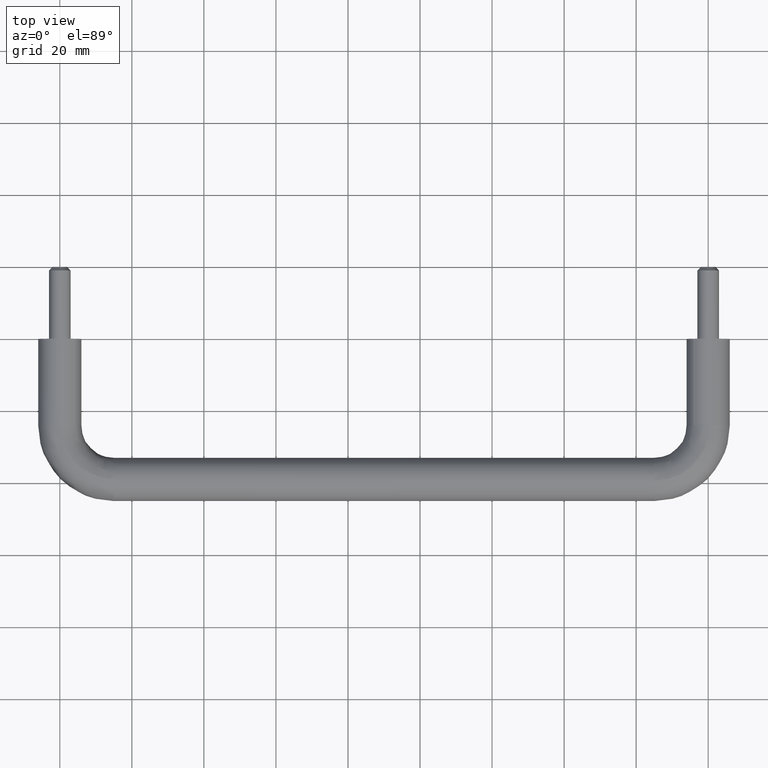
[diagram: clean part render]
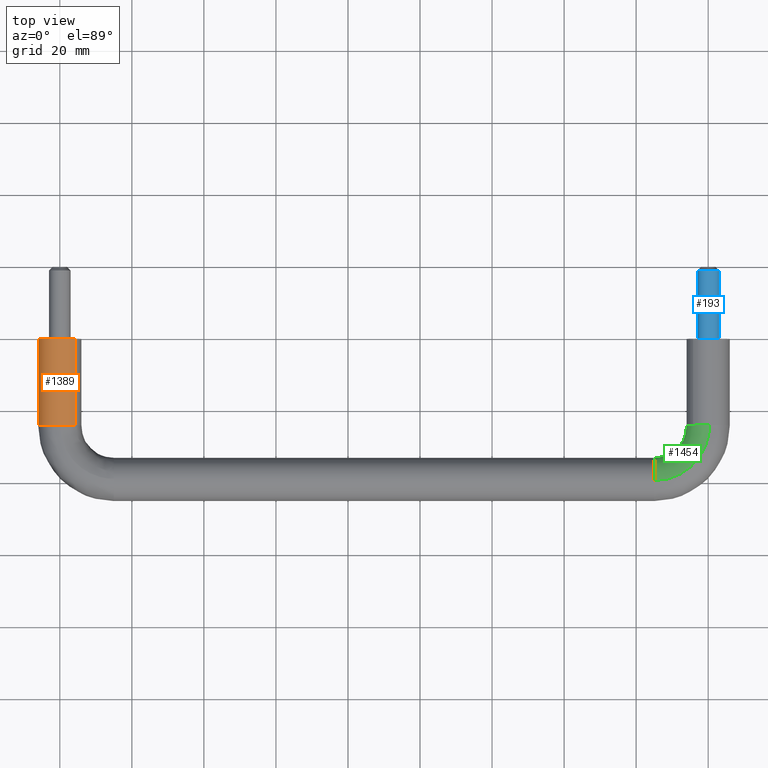
[diagram: same view with three faces highlighted in distinct colors, each labeled with its STEP entity id]
A machine part, top view with three faces highlighted in distinct colors.
Their STEP definitions:

[orange] entity #1389 — the highlighted face is a freeform B-spline surface patch.
#1192=CARTESIAN_POINT('',(2.905318393535143,-24.0,-5.249678564653877));
#1193=VERTEX_POINT('',#1192);
#1209=CARTESIAN_POINT('',(2.905309782396585,0.0,-5.249683330279442));
#1210=VERTEX_POINT('',#1209);
#1211=CARTESIAN_POINT('',(2.905309782396585,0.0,-5.249683330279442));
#1212=CARTESIAN_POINT('',(2.905318393535143,-24.0,-5.249678564653877));
#1213=QUASI_UNIFORM_CURVE('',1,(#1211,#1212),.UNSPECIFIED.,.F.,.U.);
#1214=EDGE_CURVE('',#1210,#1193,#1213,.T.);
#1231=CARTESIAN_POINT('',(4.423666584787512,1.110223E-016,4.053538447655331));
#1232=VERTEX_POINT('',#1231);
#1246=CARTESIAN_POINT('',(4.423666547451096,-24.000000000116419,4.053538488362753));
#1247=VERTEX_POINT('',#1246);
#1248=CARTESIAN_POINT('',(4.423666584787512,1.110223E-016,4.053538447655331));
#1249=CARTESIAN_POINT('',(4.423666547451096,-24.000000000116419,4.053538488362753));
#1250=QUASI_UNIFORM_CURVE('',1,(#1248,#1249),.UNSPECIFIED.,.F.,.U.);
#1251=EDGE_CURVE('',#1232,#1247,#1250,.T.);
#1269=CARTESIAN_POINT('',(4.423664020860743,0.600000000015522,4.053541245693961));
#1270=CARTESIAN_POINT('',(0.370122775166782,0.600000000015521,8.477205266554705));
#1271=CARTESIAN_POINT('',(-4.053541245693961,0.600000000015521,4.423664020860743));
#1272=CARTESIAN_POINT('',(-8.477205266554705,0.600000000015520,0.370122775166782));
#1273=CARTESIAN_POINT('',(-4.423664020860743,0.600000000015520,-4.053541245693961));
#1274=CARTESIAN_POINT('',(-1.230325250919644,0.600000000015521,-7.538458992124772));
#1275=CARTESIAN_POINT('',(2.905318393526275,0.600000000015521,-5.249678564658782));
#1276=CARTESIAN_POINT('',(4.423664020860747,-24.615000000636691,4.053541245693961));
#1277=CARTESIAN_POINT('',(0.370122775166785,-24.615000000636698,8.477205266554705));
#1278=CARTESIAN_POINT('',(-4.053541245693958,-24.615000000636691,4.423664020860743));
#1279=CARTESIAN_POINT('',(-8.477205266554702,-24.615000000636698,0.370122775166782));
#1280=CARTESIAN_POINT('',(-4.423664020860739,-24.615000000636691,-4.053541245693961));
#1281=CARTESIAN_POINT('',(-1.230325250919641,-24.615000000636694,-7.538458992124772));
#1282=CARTESIAN_POINT('',(2.905318393526280,-24.615000000636691,-5.249678564658782));
#1290=(BOUNDED_SURFACE()B_SPLINE_SURFACE(2,1,((#1269,#1276),(#1270,#1277),(#1271,#1278),(#1272,#1279),(#1273,#1280),(#1274,#1281),(#1275,#1282)),.UNSPECIFIED.,.F.,.F.,.U.)B_SPLINE_SURFACE_WITH_KNOTS((3,2,2,3),(2,2),(0.0,9.941125496954280,19.882250993908560,28.232796411350151),(0.0,25.215000000652221),.UNSPECIFIED.)GEOMETRIC_REPRESENTATION_ITEM()RATIONAL_B_SPLINE_SURFACE(((1.0,1.0),(0.707106781186548,0.707106781186548),(1.0,1.0),(0.707106781186548,0.707106781186548),(1.0,1.0),(0.753969696196700,0.753969696196700),(0.921270302782944,0.921270302782944)))REPRESENTATION_ITEM('')SURFACE());
#1291=CARTESIAN_POINT('',(-0.418399512824394,-24.000000000620791,-5.985394042806897));
#1292=VERTEX_POINT('',#1291);
#1293=CARTESIAN_POINT('',(-0.418399512824394,-24.000000000620787,-5.985394042806897));
#1294=CARTESIAN_POINT('',(-0.209454698632360,-24.000000000000004,-6.0));
#1295=CARTESIAN_POINT('',(2.939055E-015,-24.0,-6.0));
#1296=CARTESIAN_POINT('',(1.549547416940609,-24.0,-6.000000000000001));
#1297=CARTESIAN_POINT('',(2.905318393535143,-24.000000000000004,-5.249678564653877));
#1305=(BOUNDED_CURVE()B_SPLINE_CURVE(2,(#1293,#1294,#1295,#1296,#1297),.UNSPECIFIED.,.F.,.U.)B_SPLINE_CURVE_WITH_KNOTS((3,2,3),(0.237833686341369,0.250000000000000,0.332484288971160),.UNSPECIFIED.)CURVE()GEOMETRIC_REPRESENTATION_ITEM()RATIONAL_B_SPLINE_CURVE((0.972879875977236,0.985746276925718,1.0,0.903363644406792,0.870495137452543))REPRESENTATION_ITEM(''));
#1306=EDGE_CURVE('',#1292,#1193,#1305,.T.);
#1307=ORIENTED_EDGE('',*,*,#1306,.F.);
#1308=CARTESIAN_POINT('',(-5.999999999999997,-24.0,0.0));
#1309=VERTEX_POINT('',#1308);
#1310=CARTESIAN_POINT('',(-5.999999999999997,-24.0,0.0));
#1311=CARTESIAN_POINT('',(-5.999999999999999,-24.000000000000011,-5.595221077280439));
#1312=CARTESIAN_POINT('',(-0.418399512824394,-24.000000000620783,-5.985394042806897));
#1320=(BOUNDED_CURVE()B_SPLINE_CURVE(2,(#1310,#1311,#1312),.UNSPECIFIED.,.F.,.U.)B_SPLINE_CURVE_WITH_KNOTS((3,3),(0.0,0.237833686341369),.UNSPECIFIED.)CURVE()GEOMETRIC_REPRESENTATION_ITEM()RATIONAL_B_SPLINE_CURVE((1.0,0.721360504260829,0.972879875977236))REPRESENTATION_ITEM(''));
#1321=EDGE_CURVE('',#1309,#1292,#1320,.T.);
#1322=ORIENTED_EDGE('',*,*,#1321,.F.);
#1323=CARTESIAN_POINT('',(0.075396239566499,-24.000000000438011,5.999526265219547));
#1324=VERTEX_POINT('',#1323);
#1325=CARTESIAN_POINT('',(0.075396239566499,-24.000000000438011,5.999526265219547));
#1326=CARTESIAN_POINT('',(0.037699608217752,-23.999999999999996,6.0));
#1327=CARTESIAN_POINT('',(2.939055E-015,-24.0,6.0));
#1328=CARTESIAN_POINT('',(-5.999999999999998,-23.999999999999996,6.0));
#1329=CARTESIAN_POINT('',(-5.999999999999997,-24.0,0.0));
#1337=(BOUNDED_CURVE()B_SPLINE_CURVE(2,(#1325,#1326,#1327,#1328,#1329),.UNSPECIFIED.,.F.,.U.)B_SPLINE_CURVE_WITH_KNOTS((3,2,3),(0.747784295906111,0.750000000000000,1.0),.UNSPECIFIED.)CURVE()GEOMETRIC_REPRESENTATION_ITEM()RATIONAL_B_SPLINE_CURVE((0.994854295608068,0.997404141184011,1.0,0.707106781186548,1.0))REPRESENTATION_ITEM(''));
#1338=EDGE_CURVE('',#1324,#1309,#1337,.T.);
#1339=ORIENTED_EDGE('',*,*,#1338,.F.);
#1340=CARTESIAN_POINT('',(4.423666547451097,-24.000000000116430,4.053538488362754));
#1341=CARTESIAN_POINT('',(2.670382202534906,-24.000000000246160,5.966914993032725));
#1342=CARTESIAN_POINT('',(0.075396239566499,-24.000000000438011,5.999526265219547));
#1350=(BOUNDED_CURVE()B_SPLINE_CURVE(2,(#1340,#1341,#1342),.UNSPECIFIED.,.F.,.U.)B_SPLINE_CURVE_WITH_KNOTS((3,3),(0.618415114987918,0.747784295906111),.UNSPECIFIED.)CURVE()GEOMETRIC_REPRESENTATION_ITEM()RATIONAL_B_SPLINE_CURVE((0.853959792452609,0.845975465380940,0.994854295608066))REPRESENTATION_ITEM(''));
#1351=EDGE_CURVE('',#1247,#1324,#1350,.T.);
#1352=ORIENTED_EDGE('',*,*,#1351,.F.);
#1353=ORIENTED_EDGE('',*,*,#1251,.F.);
#1354=CARTESIAN_POINT('',(-6.0,0.0,0.0));
#1355=VERTEX_POINT('',#1354);
#1356=CARTESIAN_POINT('',(4.423666584787512,1.110223E-016,4.053538447655331));
#1357=CARTESIAN_POINT('',(2.640065450281171,0.0,6.000000000000001));
#1358=CARTESIAN_POINT('',(0.0,0.0,6.0));
#1359=CARTESIAN_POINT('',(-6.0,0.0,6.0));
#1360=CARTESIAN_POINT('',(-6.0,0.0,0.0));
#1368=(BOUNDED_CURVE()B_SPLINE_CURVE(2,(#1356,#1357,#1358,#1359,#1360),.UNSPECIFIED.,.F.,.U.)B_SPLINE_CURVE_WITH_KNOTS((3,2,3),(0.618415113599380,0.750000000000000,1.0),.UNSPECIFIED.)CURVE()GEOMETRIC_REPRESENTATION_ITEM()RATIONAL_B_SPLINE_CURVE((0.853959792624003,0.845838716299679,1.0,0.707106781186548,1.0))REPRESENTATION_ITEM(''));
#1369=EDGE_CURVE('',#1232,#1355,#1368,.T.);
#1370=ORIENTED_EDGE('',*,*,#1369,.T.);
#1371=CARTESIAN_POINT('',(-6.0,0.0,0.0));
#1372=CARTESIAN_POINT('',(-6.0,0.0,-6.0));
#1373=CARTESIAN_POINT('',(0.0,0.0,-6.0));
#1374=CARTESIAN_POINT('',(1.549542167775759,0.0,-6.0));
#1375=CARTESIAN_POINT('',(2.905309782396584,0.0,-5.249683330279442));
#1383=(BOUNDED_CURVE()B_SPLINE_CURVE(2,(#1371,#1372,#1373,#1374,#1375),.UNSPECIFIED.,.F.,.U.)B_SPLINE_CURVE_WITH_KNOTS((3,2,3),(0.0,0.250000000000000,0.332484036553738),.UNSPECIFIED.)CURVE()GEOMETRIC_REPRESENTATION_ITEM()RATIONAL_B_SPLINE_CURVE((1.0,0.707106781186548,1.0,0.903363940132197,0.870495338620754))REPRESENTATION_ITEM(''));
#1384=EDGE_CURVE('',#1355,#1210,#1383,.T.);
#1385=ORIENTED_EDGE('',*,*,#1384,.T.);
#1386=ORIENTED_EDGE('',*,*,#1214,.T.);
#1387=EDGE_LOOP('',(#1307,#1322,#1339,#1352,#1353,#1370,#1385,#1386));
#1388=FACE_OUTER_BOUND('',#1387,.T.);
#1389=ADVANCED_FACE('',(#1388),#1290,.T.);

[blue] entity #193 — the highlighted face is a freeform B-spline surface patch.
#44=CARTESIAN_POINT('',(182.281217896800090,19.475000000000009,-1.948344144990550));
#45=CARTESIAN_POINT('',(184.229562041790590,19.475000000000009,0.332873751809542));
#46=CARTESIAN_POINT('',(181.948344144990610,19.475000000000009,2.281217896800092));
#47=CARTESIAN_POINT('',(179.667126248190410,19.475000000000009,4.229562041790642));
#48=CARTESIAN_POINT('',(177.718782103199910,19.475000000000009,1.948344144990550));
#49=CARTESIAN_POINT('',(175.770437958209380,19.475000000000009,-0.332873751809542));
#50=CARTESIAN_POINT('',(178.051655855009390,19.475000000000009,-2.281217896800092));
#51=CARTESIAN_POINT('',(182.281217896800090,-0.486874999999980,-1.948344144990550));
#52=CARTESIAN_POINT('',(184.229562041790590,-0.486874999999980,0.332873751809542));
#53=CARTESIAN_POINT('',(181.948344144990610,-0.486874999999980,2.281217896800092));
#54=CARTESIAN_POINT('',(179.667126248190410,-0.486874999999980,4.229562041790642));
#55=CARTESIAN_POINT('',(177.718782103199910,-0.486874999999980,1.948344144990550));
#56=CARTESIAN_POINT('',(175.770437958209380,-0.486874999999980,-0.332873751809542));
#57=CARTESIAN_POINT('',(178.051655855009390,-0.486874999999980,-2.281217896800092));
#65=(BOUNDED_SURFACE()B_SPLINE_SURFACE(2,1,((#44,#51),(#45,#52),(#46,#53),(#47,#54),(#48,#55),(#49,#56),(#50,#57)),.UNSPECIFIED.,.F.,.F.,.U.)B_SPLINE_SURFACE_WITH_KNOTS((3,2,2,3),(2,2),(0.0,4.970562748477141,9.941125496954282,14.911688245431421),(0.0,19.961874999999988),.UNSPECIFIED.)GEOMETRIC_REPRESENTATION_ITEM()RATIONAL_B_SPLINE_SURFACE(((1.0,1.0),(0.707106781186548,0.707106781186548),(1.0,1.0),(0.707106781186548,0.707106781186548),(1.0,1.0),(0.707106781186548,0.707106781186548),(1.0,1.0)))REPRESENTATION_ITEM('')SURFACE());
#66=CARTESIAN_POINT('',(183.0,2.081668E-014,0.0));
#67=VERTEX_POINT('',#66);
#68=CARTESIAN_POINT('',(182.281217896799600,2.156608E-014,-1.948344144991216));
#69=VERTEX_POINT('',#68);
#70=CARTESIAN_POINT('',(183.0,2.081668E-014,0.0));
#71=CARTESIAN_POINT('',(183.000000000000090,2.081668E-014,-1.106758431330476));
#72=CARTESIAN_POINT('',(182.281217896799520,2.156608E-014,-1.948344144991216));
#80=(BOUNDED_CURVE()B_SPLINE_CURVE(2,(#70,#71,#72),.UNSPECIFIED.,.F.,.U.)B_SPLINE_CURVE_WITH_KNOTS((3,3),(0.0,0.113143161349462),.UNSPECIFIED.)CURVE()GEOMETRIC_REPRESENTATION_ITEM()RATIONAL_B_SPLINE_CURVE((1.0,0.867444541142505,0.854871031639134))REPRESENTATION_ITEM(''));
#81=EDGE_CURVE('',#67,#69,#80,.T.);
#82=ORIENTED_EDGE('',*,*,#81,.T.);
#83=CARTESIAN_POINT('',(182.281217896799490,19.0,-1.948344144991222));
#84=VERTEX_POINT('',#83);
#85=CARTESIAN_POINT('',(182.281217896799490,19.0,-1.948344144991222));
#86=CARTESIAN_POINT('',(182.281217896799600,2.156608E-014,-1.948344144991216));
#87=QUASI_UNIFORM_CURVE('',1,(#85,#86),.UNSPECIFIED.,.F.,.U.);
#88=EDGE_CURVE('',#84,#69,#87,.T.);
#89=ORIENTED_EDGE('',*,*,#88,.F.);
#90=CARTESIAN_POINT('',(182.990752001276210,18.999999999810019,0.235377288628793));
#91=VERTEX_POINT('',#90);
#92=CARTESIAN_POINT('',(182.990752001276230,18.999999999810019,0.235377288628793));
#93=CARTESIAN_POINT('',(182.999999999999970,19.000000000000004,0.117870322459998));
#94=CARTESIAN_POINT('',(183.0,19.0,0.0));
#95=CARTESIAN_POINT('',(183.000000000000060,19.0,-1.106758431330486));
#96=CARTESIAN_POINT('',(182.281217896799520,19.000000000000004,-1.948344144991222));
#104=(BOUNDED_CURVE()B_SPLINE_CURVE(2,(#92,#93,#94,#95,#96),.UNSPECIFIED.,.F.,.U.)B_SPLINE_CURVE_WITH_KNOTS((3,2,3),(0.736331300468797,0.750000000000000,0.863143161349463),.UNSPECIFIED.)CURVE()GEOMETRIC_REPRESENTATION_ITEM()RATIONAL_B_SPLINE_CURVE((0.969723355829622,0.983986122389248,1.0,0.867444541142504,0.854871031639134))REPRESENTATION_ITEM(''));
#105=EDGE_CURVE('',#91,#84,#104,.T.);
#106=ORIENTED_EDGE('',*,*,#105,.F.);
#107=CARTESIAN_POINT('',(180.0,19.0,3.0));
#108=VERTEX_POINT('',#107);
#109=CARTESIAN_POINT('',(180.0,19.0,3.0));
#110=CARTESIAN_POINT('',(182.773171472313830,18.999999999999996,3.000000000000000));
#111=CARTESIAN_POINT('',(182.990752001276260,18.999999999810015,0.235377288628793));
#119=(BOUNDED_CURVE()B_SPLINE_CURVE(2,(#109,#110,#111),.UNSPECIFIED.,.F.,.U.)B_SPLINE_CURVE_WITH_KNOTS((3,3),(0.500000000000000,0.736331300468797),.UNSPECIFIED.)CURVE()GEOMETRIC_REPRESENTATION_ITEM()RATIONAL_B_SPLINE_CURVE((1.0,0.723120658797299,0.969723355829623))REPRESENTATION_ITEM(''));
#120=EDGE_CURVE('',#108,#91,#119,.T.);
#121=ORIENTED_EDGE('',*,*,#120,.F.);
#122=CARTESIAN_POINT('',(177.009247998723790,18.999999999810019,-0.235377288628793));
#123=VERTEX_POINT('',#122);
#124=CARTESIAN_POINT('',(177.009247998723740,18.999999999810019,-0.235377288628793));
#125=CARTESIAN_POINT('',(177.000000000000090,19.000000000000004,-0.117870322459998));
#126=CARTESIAN_POINT('',(177.0,19.0,0.0));
#127=CARTESIAN_POINT('',(176.999999999999970,18.999999999999993,3.0));
#128=CARTESIAN_POINT('',(180.0,19.0,3.0));
#136=(BOUNDED_CURVE()B_SPLINE_CURVE(2,(#124,#125,#126,#127,#128),.UNSPECIFIED.,.F.,.U.)B_SPLINE_CURVE_WITH_KNOTS((3,2,3),(0.236331300468797,0.250000000000000,0.500000000000000),.UNSPECIFIED.)CURVE()GEOMETRIC_REPRESENTATION_ITEM()RATIONAL_B_SPLINE_CURVE((0.969723355829622,0.983986122389248,1.0,0.707106781186548,1.0))REPRESENTATION_ITEM(''));
#137=EDGE_CURVE('',#123,#108,#136,.T.);
#138=ORIENTED_EDGE('',*,*,#137,.F.);
#139=CARTESIAN_POINT('',(178.051657767685100,19.0,-2.281219530376657));
#140=VERTEX_POINT('',#139);
#141=CARTESIAN_POINT('',(178.051657767685130,19.0,-2.281219530376657));
#142=CARTESIAN_POINT('',(177.106744580310280,19.0,-1.474188797772609));
#143=CARTESIAN_POINT('',(177.009247998723710,18.999999999810015,-0.235377288628793));
#151=(BOUNDED_CURVE()B_SPLINE_CURVE(2,(#141,#142,#143),.UNSPECIFIED.,.F.,.U.)B_SPLINE_CURVE_WITH_KNOTS((3,3),(0.113143034642589,0.236331300468796),.UNSPECIFIED.)CURVE()GEOMETRIC_REPRESENTATION_ITEM()RATIONAL_B_SPLINE_CURVE((0.854871059800953,0.841181099534255,0.969723355829622))REPRESENTATION_ITEM(''));
#152=EDGE_CURVE('',#140,#123,#151,.T.);
#153=ORIENTED_EDGE('',*,*,#152,.F.);
#154=CARTESIAN_POINT('',(178.051655855007710,2.062239E-014,-2.281217896798640));
#155=VERTEX_POINT('',#154);
#156=CARTESIAN_POINT('',(178.051657767685100,19.0,-2.281219530376657));
#157=CARTESIAN_POINT('',(178.051655855007710,2.062239E-014,-2.281217896798640));
#158=QUASI_UNIFORM_CURVE('',1,(#156,#157),.UNSPECIFIED.,.F.,.U.);
#159=EDGE_CURVE('',#140,#155,#158,.T.);
#160=ORIENTED_EDGE('',*,*,#159,.T.);
#161=CARTESIAN_POINT('',(177.0,2.081668E-014,0.0));
#162=VERTEX_POINT('',#161);
#163=CARTESIAN_POINT('',(178.051655855007710,2.062239E-014,-2.281217896798640));
#164=CARTESIAN_POINT('',(177.000000000000090,2.081668E-014,-1.383018943279242));
#165=CARTESIAN_POINT('',(177.0,2.081668E-014,0.0));
#173=(BOUNDED_CURVE()B_SPLINE_CURVE(2,(#163,#164,#165),.UNSPECIFIED.,.F.,.U.)B_SPLINE_CURVE_WITH_KNOTS((3,3),(0.363143161349600,0.500000000000000),.UNSPECIFIED.)CURVE()GEOMETRIC_REPRESENTATION_ITEM()RATIONAL_B_SPLINE_CURVE((0.854871031639104,0.839662240044204,1.0))REPRESENTATION_ITEM(''));
#174=EDGE_CURVE('',#155,#162,#173,.T.);
#175=ORIENTED_EDGE('',*,*,#174,.T.);
#176=CARTESIAN_POINT('',(177.0,2.081668E-014,0.0));
#177=CARTESIAN_POINT('',(176.999999999999970,2.081668E-014,3.0));
#178=CARTESIAN_POINT('',(180.0,2.081668E-014,3.0));
#179=CARTESIAN_POINT('',(182.999999999999970,2.081668E-014,3.0));
#180=CARTESIAN_POINT('',(183.0,2.081668E-014,0.0));
#188=(BOUNDED_CURVE()B_SPLINE_CURVE(2,(#176,#177,#178,#179,#180),.UNSPECIFIED.,.F.,.U.)B_SPLINE_CURVE_WITH_KNOTS((3,2,3),(0.500000000000000,0.750000000000000,1.0),.UNSPECIFIED.)CURVE()GEOMETRIC_REPRESENTATION_ITEM()RATIONAL_B_SPLINE_CURVE((1.0,0.707106781186548,1.0,0.707106781186548,1.0))REPRESENTATION_ITEM(''));
#189=EDGE_CURVE('',#162,#67,#188,.T.);
#190=ORIENTED_EDGE('',*,*,#189,.T.);
#191=EDGE_LOOP('',(#82,#89,#106,#121,#138,#153,#160,#175,#190));
#192=FACE_OUTER_BOUND('',#191,.T.);
#193=ADVANCED_FACE('',(#192),#65,.T.);

[green] entity #1454 — the highlighted face is a freeform B-spline surface patch.
#728=CARTESIAN_POINT('',(179.924603759232810,-24.000000001158671,-5.999526265204459));
#729=VERTEX_POINT('',#728);
#745=CARTESIAN_POINT('',(174.0,-24.0,0.0));
#746=VERTEX_POINT('',#745);
#747=CARTESIAN_POINT('',(179.924603759232840,-24.000000001158668,-5.999526265204459));
#748=CARTESIAN_POINT('',(173.999999999999940,-23.999999999999996,-5.925071576546007));
#749=CARTESIAN_POINT('',(174.0,-24.0,0.0));
#757=(BOUNDED_CURVE()B_SPLINE_CURVE(2,(#747,#748,#749),.UNSPECIFIED.,.F.,.U.)B_SPLINE_CURVE_WITH_KNOTS((3,3),(0.252215704164280,0.500000000000000),.UNSPECIFIED.)CURVE()GEOMETRIC_REPRESENTATION_ITEM()RATIONAL_B_SPLINE_CURVE((0.994854295446056,0.709702640085004,1.0))REPRESENTATION_ITEM(''));
#758=EDGE_CURVE('',#729,#746,#757,.T.);
#760=CARTESIAN_POINT('',(175.794545030520990,-23.999999999999989,4.279503300581002));
#761=VERTEX_POINT('',#760);
#762=CARTESIAN_POINT('',(174.0,-24.0,0.0));
#763=CARTESIAN_POINT('',(174.0,-24.000000000000004,2.516009826595700));
#764=CARTESIAN_POINT('',(175.794545030521020,-23.999999999999989,4.279503300581003));
#772=(BOUNDED_CURVE()B_SPLINE_CURVE(2,(#762,#763,#764),.UNSPECIFIED.,.F.,.U.)B_SPLINE_CURVE_WITH_KNOTS((3,3),(0.500000000000000,0.626316801052815),.UNSPECIFIED.)CURVE()GEOMETRIC_REPRESENTATION_ITEM()RATIONAL_B_SPLINE_CURVE((1.0,0.852010662197690,0.853569642324278))REPRESENTATION_ITEM(''));
#773=EDGE_CURVE('',#746,#761,#772,.T.);
#891=CARTESIAN_POINT('',(180.418399512379300,-24.000000000521919,5.985394042838014));
#892=VERTEX_POINT('',#891);
#893=CARTESIAN_POINT('',(175.794545030521020,-23.999999999999989,4.279503300581003));
#894=CARTESIAN_POINT('',(177.545336200159990,-24.000000000000007,6.000000000000002));
#895=CARTESIAN_POINT('',(180.0,-24.0,6.0));
#896=CARTESIAN_POINT('',(180.209454698185600,-23.999999999999993,5.999999999999999));
#897=CARTESIAN_POINT('',(180.418399512379270,-24.000000000521922,5.985394042838014));
#905=(BOUNDED_CURVE()B_SPLINE_CURVE(2,(#893,#894,#895,#896,#897),.UNSPECIFIED.,.F.,.U.)B_SPLINE_CURVE_WITH_KNOTS((3,2,3),(0.626316801052814,0.750000000000000,0.762166313633050),.UNSPECIFIED.)CURVE()GEOMETRIC_REPRESENTATION_ITEM()RATIONAL_B_SPLINE_CURVE((0.853569642324278,0.855096118988857,1.0,0.985746276955688,0.972879876031342))REPRESENTATION_ITEM(''));
#906=EDGE_CURVE('',#761,#892,#905,.T.);
#950=CARTESIAN_POINT('',(165.0,-33.626367044200506,2.669095138121863));
#951=VERTEX_POINT('',#950);
#952=CARTESIAN_POINT('',(165.000000000054090,-39.418399510324463,5.985394042981652));
#953=VERTEX_POINT('',#952);
#954=CARTESIAN_POINT('',(164.999999999999970,-33.626367044200506,2.669095138121863));
#955=CARTESIAN_POINT('',(164.999999999999970,-35.280834709864202,6.000000000000001));
#956=CARTESIAN_POINT('',(165.0,-39.0,6.0));
#957=CARTESIAN_POINT('',(165.000000000000030,-39.209454696123281,6.0));
#958=CARTESIAN_POINT('',(165.000000000054110,-39.418399510324463,5.985394042981652));
#966=(BOUNDED_CURVE()B_SPLINE_CURVE(2,(#954,#955,#956,#957,#958),.UNSPECIFIED.,.F.,.U.)B_SPLINE_CURVE_WITH_KNOTS((3,2,3),(0.575619190624198,0.750000000000000,0.762166313514967),.UNSPECIFIED.)CURVE()GEOMETRIC_REPRESENTATION_ITEM()RATIONAL_B_SPLINE_CURVE((0.876408099966890,0.795700173770505,1.0,0.985746277094031,0.972879876281099))REPRESENTATION_ITEM(''));
#967=EDGE_CURVE('',#951,#953,#966,.T.);
#1040=CARTESIAN_POINT('',(165.000000000420700,-34.869874496015584,-4.352248076460115));
#1041=VERTEX_POINT('',#1040);
#1047=CARTESIAN_POINT('',(165.000000001333010,-38.924603758927660,-5.999526265200624));
#1048=VERTEX_POINT('',#1047);
#1049=CARTESIAN_POINT('',(165.000000001333060,-38.924603758927660,-5.999526265200625));
#1050=CARTESIAN_POINT('',(165.000000000804310,-36.574624527566719,-5.969993999322286));
#1051=CARTESIAN_POINT('',(165.000000000420670,-34.869874496015569,-4.352248076460115));
#1059=(BOUNDED_CURVE()B_SPLINE_CURVE(2,(#1049,#1050,#1051),.UNSPECIFIED.,.F.,.U.)B_SPLINE_CURVE_WITH_KNOTS((3,3),(0.252215704182171,0.371049459051509),.UNSPECIFIED.)CURVE()GEOMETRIC_REPRESENTATION_ITEM()RATIONAL_B_SPLINE_CURVE((0.994854295404876,0.858099696835444,0.853699666375974))REPRESENTATION_ITEM(''));
#1060=EDGE_CURVE('',#1048,#1041,#1059,.T.);
#1109=CARTESIAN_POINT('',(165.0,-33.0,0.0));
#1110=VERTEX_POINT('',#1109);
#1111=CARTESIAN_POINT('',(165.0,-33.0,0.0));
#1112=CARTESIAN_POINT('',(165.000000000000060,-33.0,1.408043576856816));
#1113=CARTESIAN_POINT('',(165.0,-33.626367044200514,2.669095138121864));
#1121=(BOUNDED_CURVE()B_SPLINE_CURVE(2,(#1111,#1112,#1113),.UNSPECIFIED.,.F.,.U.)B_SPLINE_CURVE_WITH_KNOTS((3,3),(0.500000000000000,0.575619190624199),.UNSPECIFIED.)CURVE()GEOMETRIC_REPRESENTATION_ITEM()RATIONAL_B_SPLINE_CURVE((1.0,0.911406607416042,0.876408099966890))REPRESENTATION_ITEM(''));
#1122=EDGE_CURVE('',#1110,#951,#1121,.T.);
#1124=CARTESIAN_POINT('',(165.000000000420670,-34.869874496015569,-4.352248076460115));
#1125=CARTESIAN_POINT('',(165.0,-33.000000000000007,-2.577805027836772));
#1126=CARTESIAN_POINT('',(165.0,-33.0,0.0));
#1134=(BOUNDED_CURVE()B_SPLINE_CURVE(2,(#1124,#1125,#1126),.UNSPECIFIED.,.F.,.U.)B_SPLINE_CURVE_WITH_KNOTS((3,3),(0.371049459051509,0.500000000000000),.UNSPECIFIED.)CURVE()GEOMETRIC_REPRESENTATION_ITEM()RATIONAL_B_SPLINE_CURVE((0.853699666375974,0.848925043975442,1.0))REPRESENTATION_ITEM(''));
#1135=EDGE_CURVE('',#1041,#1110,#1134,.T.);
#1390=CARTESIAN_POINT('',(163.927849274275330,-39.381076882588154,5.985394066133805));
#1391=CARTESIAN_POINT('',(181.613898048766230,-40.613897586464766,5.985394066133804));
#1392=CARTESIAN_POINT('',(180.381076852754320,-22.927848846278568,5.985394066133805));
#1393=CARTESIAN_POINT('',(163.939760926310100,-39.210192293930206,5.997368459328779));
#1394=CARTESIAN_POINT('',(181.429316750867460,-40.429316293702222,5.997368459328780));
#1395=CARTESIAN_POINT('',(180.210192264427800,-22.939760503068367,5.997368459328781));
#1396=CARTESIAN_POINT('',(163.951700703115880,-39.038904227238646,5.999526265222895));
#1397=CARTESIAN_POINT('',(181.244299635440140,-40.244299183423145,5.999526265222896));
#1398=CARTESIAN_POINT('',(180.038904198068420,-22.951700284640484,5.999526265222896));
#1399=CARTESIAN_POINT('',(164.368890345473320,-33.053900617431125,6.074922504523010));
#1400=CARTESIAN_POINT('',(174.779587147889690,-33.779586875761062,6.074922504523014));
#1401=CARTESIAN_POINT('',(174.053900599869760,-23.368890093537821,6.074922504523012));
#1402=CARTESIAN_POINT('',(164.374133181110380,-32.978686884808127,0.075396239300117));
#1403=CARTESIAN_POINT('',(174.698344898390300,-33.698344628522285,0.075396239300117));
#1404=CARTESIAN_POINT('',(173.978686867392610,-23.374132931267766,0.075396239300117));
#1405=CARTESIAN_POINT('',(164.379376016747410,-32.903473152185114,-5.924130025922777));
#1406=CARTESIAN_POINT('',(174.617102648890810,-33.617102381283473,-5.924130025922778));
#1407=CARTESIAN_POINT('',(173.903473134915540,-23.379375768997736,-5.924130025922779));
#1408=CARTESIAN_POINT('',(163.962186374389940,-38.888476761992649,-5.999526265222895));
#1409=CARTESIAN_POINT('',(181.081815136441180,-40.081814688945570,-5.999526265222896));
#1410=CARTESIAN_POINT('',(179.888476733114230,-22.962185960100403,-5.999526265222896));
#1418=(BOUNDED_SURFACE()B_SPLINE_SURFACE(2,2,((#1390,#1393,#1396,#1399,#1402,#1405,#1408),(#1391,#1394,#1397,#1400,#1403,#1406,#1409),(#1392,#1395,#1398,#1401,#1404,#1407,#1410)),.UNSPECIFIED.,.F.,.F.,.U.)B_SPLINE_SURFACE_WITH_KNOTS((3,3),(3,2,2,3),(0.0,28.098088504371859),(0.0,0.397644640654329,10.338770137608609,20.279895634562891),.UNSPECIFIED.)GEOMETRIC_REPRESENTATION_ITEM()RATIONAL_B_SPLINE_SURFACE(((0.895729732449210,0.905606490046838,0.916342095240933,0.647951709431553,0.916342095240933,0.647951709431553,0.916342095240933),(0.587800221482116,0.594281596491894,0.601326568744382,0.425202094466791,0.601326568744382,0.425202094466791,0.601326568744382),(0.895729743804760,0.905606501527600,0.916342106857795,0.647951717645915,0.916342106857795,0.647951717645915,0.916342106857795)))REPRESENTATION_ITEM('')SURFACE());
#1419=ORIENTED_EDGE('',*,*,#906,.F.);
#1420=ORIENTED_EDGE('',*,*,#773,.F.);
#1421=ORIENTED_EDGE('',*,*,#758,.F.);
#1422=CARTESIAN_POINT('',(165.000000001333060,-38.924603758927653,-5.999526265200624));
#1423=CARTESIAN_POINT('',(179.924603758382570,-38.924603758033832,-5.999526265222895));
#1424=CARTESIAN_POINT('',(179.924603759232870,-24.000000001158675,-5.999526265204460));
#1432=(BOUNDED_CURVE()B_SPLINE_CURVE(2,(#1422,#1423,#1424),.UNSPECIFIED.,.F.,.U.)B_SPLINE_CURVE_WITH_KNOTS((3,3),(-1.734750791472783,-0.265249208502939),.UNSPECIFIED.)CURVE()GEOMETRIC_REPRESENTATION_ITEM()RATIONAL_B_SPLINE_CURVE((0.889029723510660,0.628638946278784,0.889029723519264))REPRESENTATION_ITEM(''));
#1433=EDGE_CURVE('',#1048,#729,#1432,.T.);
#1434=ORIENTED_EDGE('',*,*,#1433,.F.);
#1435=ORIENTED_EDGE('',*,*,#1060,.T.);
#1436=ORIENTED_EDGE('',*,*,#1135,.T.);
#1437=ORIENTED_EDGE('',*,*,#1122,.T.);
#1438=ORIENTED_EDGE('',*,*,#967,.T.);
#1439=CARTESIAN_POINT('',(165.000000000054110,-39.418399510324463,5.985394042981652));
#1440=CARTESIAN_POINT('',(180.418399508408870,-39.418399509344383,5.985394043042591));
#1441=CARTESIAN_POINT('',(180.418399512379320,-24.000000000521926,5.985394042838014));
#1449=(BOUNDED_CURVE()B_SPLINE_CURVE(2,(#1439,#1440,#1441),.UNSPECIFIED.,.F.,.U.)B_SPLINE_CURVE_WITH_KNOTS((3,3),(-1.734750791651105,-0.265249208411948),.UNSPECIFIED.)CURVE()GEOMETRIC_REPRESENTATION_ITEM()RATIONAL_B_SPLINE_CURVE((0.869031711872732,0.614498216546599,0.869031711850890))REPRESENTATION_ITEM(''));
#1450=EDGE_CURVE('',#953,#892,#1449,.T.);
#1451=ORIENTED_EDGE('',*,*,#1450,.T.);
#1452=EDGE_LOOP('',(#1419,#1420,#1421,#1434,#1435,#1436,#1437,#1438,#1451));
#1453=FACE_OUTER_BOUND('',#1452,.T.);
#1454=ADVANCED_FACE('',(#1453),#1418,.T.);